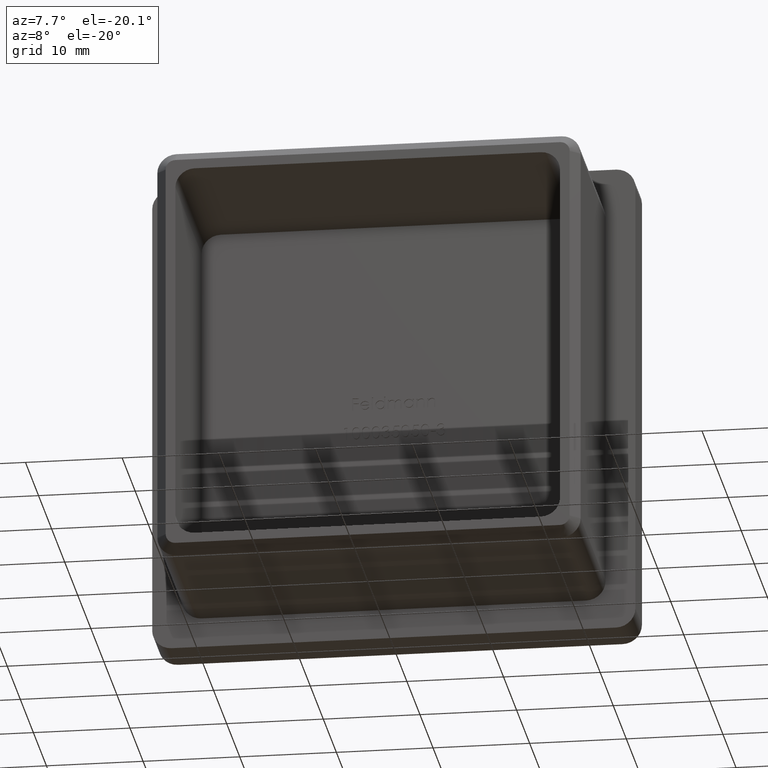
[diagram: clean part render]
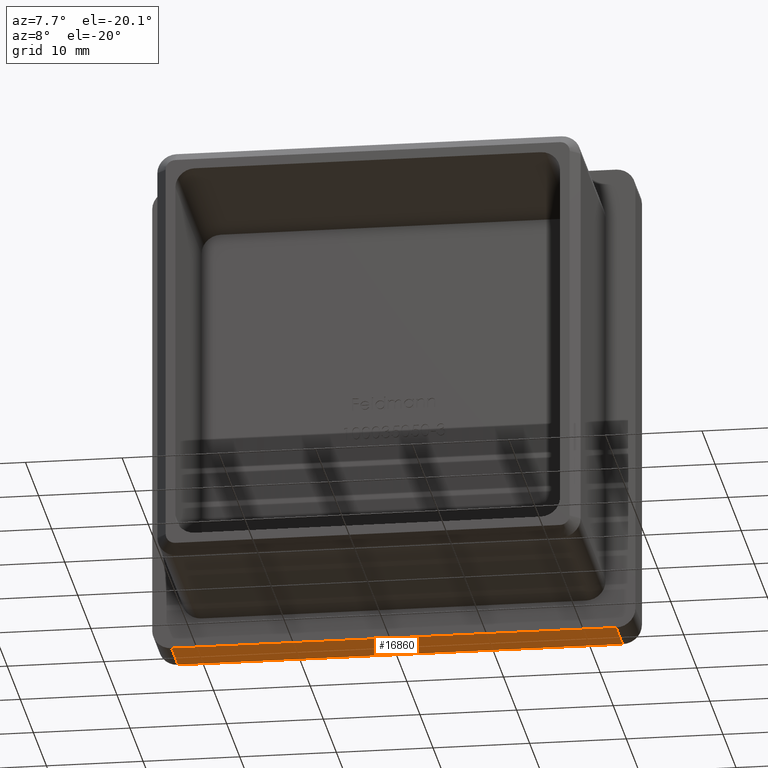
[diagram: same view with one face highlighted and labeled with its STEP entity id]
A machine part, auxiliary view. The second image highlights one B-rep face of the part: STEP entity #16860.
In plain terms, the highlighted planar face has unit normal (0, 0, 1).
Its self-contained STEP definition (entity closure, byte-faithful):
#1402 = VECTOR ( 'NONE', #10583, 1000.000000000000000 ) ;
#1451 = LINE ( 'NONE', #16577, #14415 ) ;
#1500 = VERTEX_POINT ( 'NONE', #2115 ) ;
#2115 = CARTESIAN_POINT ( 'NONE',  ( 22.99999999999999600, 5.000000000000000000, -24.99999999999999600 ) ) ;
#2769 = CARTESIAN_POINT ( 'NONE',  ( -25.00000000000000400, 0.0000000000000000000, -24.99999999999999600 ) ) ;
#3385 = CARTESIAN_POINT ( 'NONE',  ( -25.00000000000000400, 5.000000000000000000, -24.99999999999999600 ) ) ;
#3978 = CARTESIAN_POINT ( 'NONE',  ( 22.99999999999999600, 5.000000000000000000, -24.99999999999999600 ) ) ;
#4059 = DIRECTION ( 'NONE',  ( -1.000000000000000000, -0.0000000000000000000, -0.0000000000000000000 ) ) ;
#4333 = AXIS2_PLACEMENT_3D ( 'NONE', #3385, #11078, #16474 ) ;
#4697 = CARTESIAN_POINT ( 'NONE',  ( -23.00000000000000700, 5.000000000000000000, -24.99999999999999600 ) ) ;
#5133 = VERTEX_POINT ( 'NONE', #4697 ) ;
#5905 = EDGE_LOOP ( 'NONE', ( #6397, #13525, #7615, #15656 ) ) ;
#6397 = ORIENTED_EDGE ( 'NONE', *, *, #14934, .F. ) ;
#6696 = LINE ( 'NONE', #6851, #1402 ) ;
#6851 = CARTESIAN_POINT ( 'NONE',  ( -23.00000000000000700, 5.000000000000000000, -24.99999999999999600 ) ) ;
#7051 = EDGE_CURVE ( 'NONE', #12384, #5133, #6696, .T. ) ;
#7615 = ORIENTED_EDGE ( 'NONE', *, *, #9596, .T. ) ;
#7975 = LINE ( 'NONE', #3978, #10992 ) ;
#8491 = PLANE ( 'NONE',  #4333 ) ;
#9596 = EDGE_CURVE ( 'NONE', #13861, #12384, #14522, .T. ) ;
#10583 = DIRECTION ( 'NONE',  ( -0.0000000000000000000, 1.000000000000000000, -0.0000000000000000000 ) ) ;
#10691 = VECTOR ( 'NONE', #4059, 1000.000000000000000 ) ;
#10992 = VECTOR ( 'NONE', #15647, 1000.000000000000000 ) ;
#11078 = DIRECTION ( 'NONE',  ( 0.0000000000000000000, 0.0000000000000000000, 1.000000000000000000 ) ) ;
#11398 = FACE_OUTER_BOUND ( 'NONE', #5905, .T. ) ;
#12384 = VERTEX_POINT ( 'NONE', #13536 ) ;
#13525 = ORIENTED_EDGE ( 'NONE', *, *, #15083, .T. ) ;
#13536 = CARTESIAN_POINT ( 'NONE',  ( -23.00000000000000700, 0.0000000000000000000, -24.99999999999999600 ) ) ;
#13861 = VERTEX_POINT ( 'NONE', #14585 ) ;
#14415 = VECTOR ( 'NONE', #16453, 1000.000000000000000 ) ;
#14522 = LINE ( 'NONE', #2769, #10691 ) ;
#14585 = CARTESIAN_POINT ( 'NONE',  ( 22.99999999999999600, 0.0000000000000000000, -24.99999999999999600 ) ) ;
#14934 = EDGE_CURVE ( 'NONE', #1500, #5133, #1451, .T. ) ;
#15083 = EDGE_CURVE ( 'NONE', #1500, #13861, #7975, .T. ) ;
#15647 = DIRECTION ( 'NONE',  ( 0.0000000000000000000, -1.000000000000000000, 0.0000000000000000000 ) ) ;
#15656 = ORIENTED_EDGE ( 'NONE', *, *, #7051, .T. ) ;
#16453 = DIRECTION ( 'NONE',  ( -1.000000000000000000, -0.0000000000000000000, -0.0000000000000000000 ) ) ;
#16474 = DIRECTION ( 'NONE',  ( 1.000000000000000000, 0.0000000000000000000, -0.0000000000000000000 ) ) ;
#16577 = CARTESIAN_POINT ( 'NONE',  ( -25.00000000000000400, 5.000000000000000000, -24.99999999999999600 ) ) ;
#16860 = ADVANCED_FACE ( 'NONE', ( #11398 ), #8491, .F. ) ;